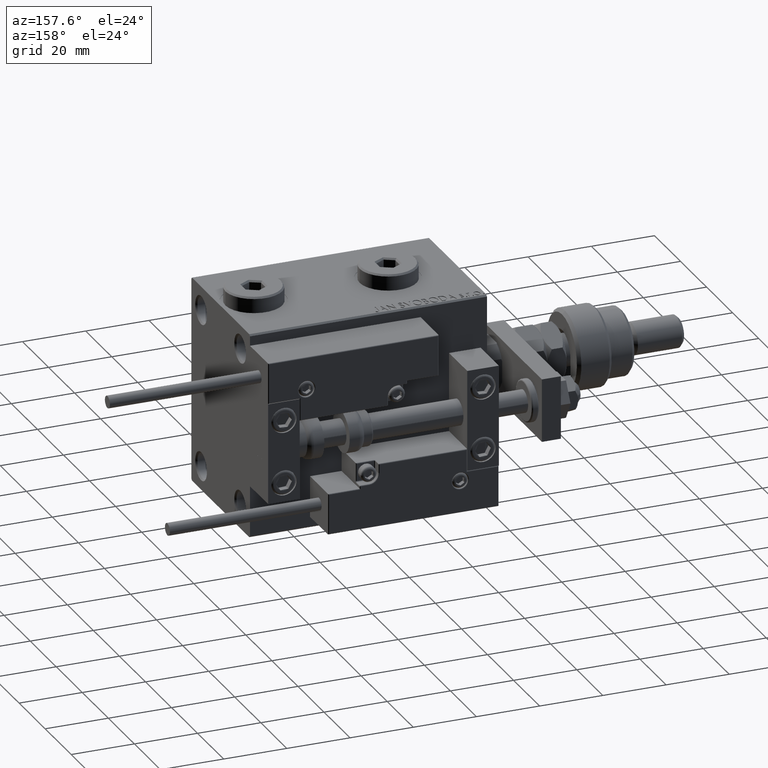
[diagram: clean part render]
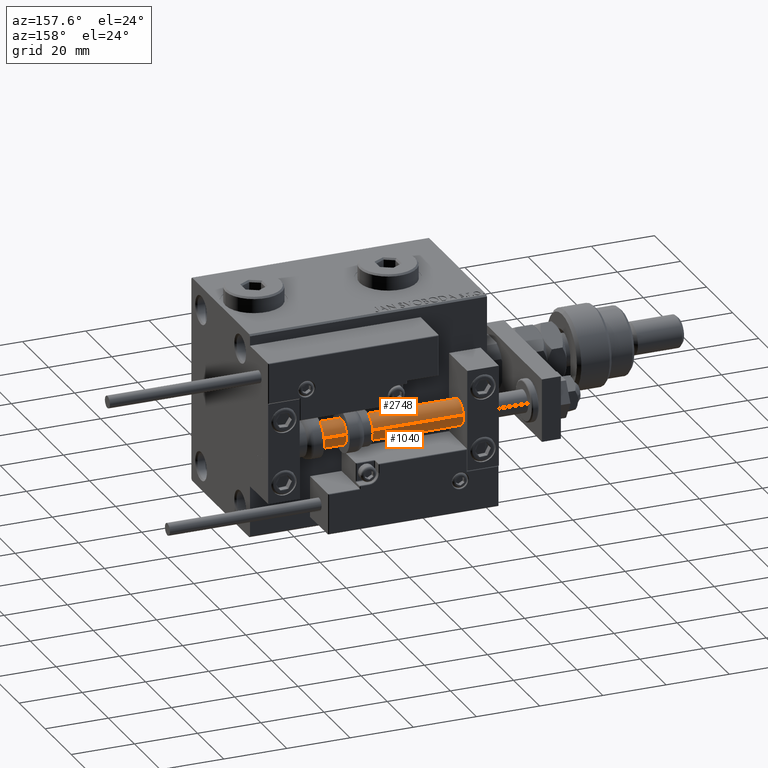
[diagram: same view with one multi-face feature highlighted, each face labeled with its STEP entity id]
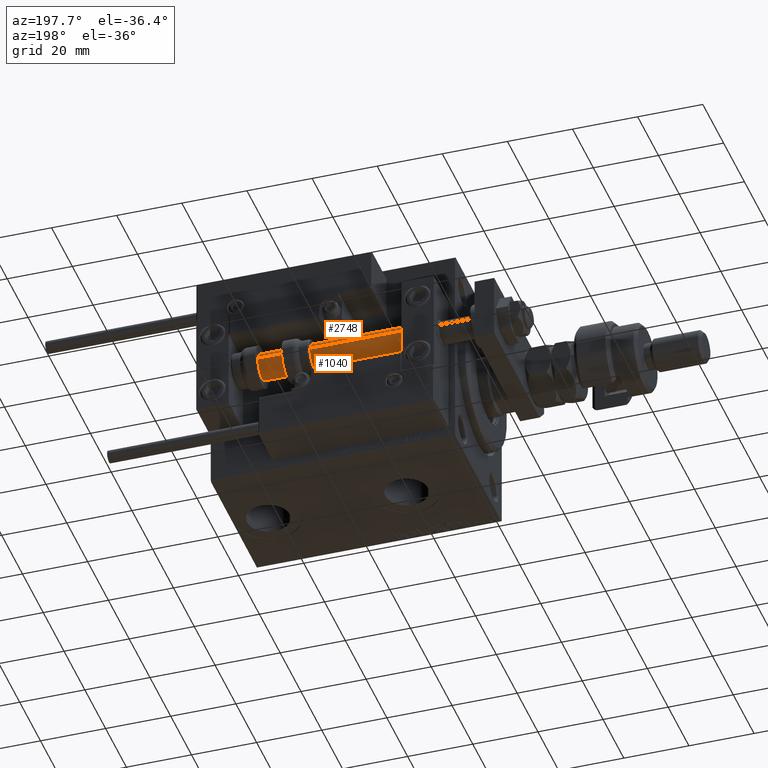
[diagram: same view with one multi-face feature highlighted, each face labeled with its STEP entity id]
A machine part, auxiliary view. The highlighted faces form ONE feature: a constant-radius fillet chain: 2 tangent blend faces with common blend radius 4 mm. The faces share edges in the B-rep.
A second angle (auxiliary view) of the same feature is appended — it is thin or edge-on in the first view.
Their STEP definitions:
[1] entity #2748 (Cylinder):
#16 = DIRECTION ( 'NONE',  ( 0.000000000000000000, 0.000000000000000000, 1.000000000000000000 ) ) ;
#62 = VERTEX_POINT ( 'NONE', #39488 ) ;
#636 = CARTESIAN_POINT ( 'NONE',  ( 4.000000000000000000, 4.898587196589412829E-16, 2.000000000000029310 ) ) ;
#1848 = DIRECTION ( 'NONE',  ( -1.000000000000000000, 0.000000000000000000, 0.000000000000000000 ) ) ;
#2748 = ADVANCED_FACE ( 'NONE', ( #49699 ), #6860, .T. ) ;
#2932 = CARTESIAN_POINT ( 'NONE',  ( 0.000000000000000000, 0.000000000000000000, 75.00000000000000000 ) ) ;
#6157 = CARTESIAN_POINT ( 'NONE',  ( 0.000000000000000000, 0.000000000000000000, 2.000000000000029310 ) ) ;
#6860 = CYLINDRICAL_SURFACE ( 'NONE', #15973, 4.000000000000000000 ) ;
#7073 = ORIENTED_EDGE ( 'NONE', *, *, #36424, .T. ) ;
#7565 = ORIENTED_EDGE ( 'NONE', *, *, #31141, .T. ) ;
#10468 = CARTESIAN_POINT ( 'NONE',  ( 4.000000000000000000, 4.898587196589412829E-16, 75.00000000000000000 ) ) ;
#11058 = DIRECTION ( 'NONE',  ( -0.000000000000000000, -0.000000000000000000, -1.000000000000000000 ) ) ;
#11345 = AXIS2_PLACEMENT_3D ( 'NONE', #6157, #18756, #14547 ) ;
#11925 = CARTESIAN_POINT ( 'NONE',  ( 4.000000000000000000, 4.898587196589412829E-16, 75.00000000000000000 ) ) ;
#12217 = LINE ( 'NONE', #17984, #23168 ) ;
#14547 = DIRECTION ( 'NONE',  ( 1.000000000000000000, 0.000000000000000000, 0.000000000000000000 ) ) ;
#15973 = AXIS2_PLACEMENT_3D ( 'NONE', #2932, #11058, #1848 ) ;
#16345 = EDGE_CURVE ( 'NONE', #17874, #21643, #39599, .T. ) ;
#17874 = VERTEX_POINT ( 'NONE', #11925 ) ;
#17984 = CARTESIAN_POINT ( 'NONE',  ( -4.000000000000000000, 0.000000000000000000, 75.00000000000000000 ) ) ;
#18756 = DIRECTION ( 'NONE',  ( -0.000000000000000000, -0.000000000000000000, 1.000000000000000000 ) ) ;
#21643 = VERTEX_POINT ( 'NONE', #47618 ) ;
#21909 = ORIENTED_EDGE ( 'NONE', *, *, #16345, .F. ) ;
#22130 = ORIENTED_EDGE ( 'NONE', *, *, #39582, .F. ) ;
#23168 = VECTOR ( 'NONE', #30615, 1000.000000000000000 ) ;
#24446 = LINE ( 'NONE', #10468, #24986 ) ;
#24986 = VECTOR ( 'NONE', #37037, 1000.000000000000000 ) ;
#25822 = EDGE_LOOP ( 'NONE', ( #21909, #7073, #7565, #22130 ) ) ;
#30615 = DIRECTION ( 'NONE',  ( -0.000000000000000000, -0.000000000000000000, -1.000000000000000000 ) ) ;
#31141 = EDGE_CURVE ( 'NONE', #38967, #62, #35489, .T. ) ;
#31555 = AXIS2_PLACEMENT_3D ( 'NONE', #42562, #16, #34427 ) ;
#34427 = DIRECTION ( 'NONE',  ( 1.000000000000000000, 0.000000000000000000, 0.000000000000000000 ) ) ;
#35489 = CIRCLE ( 'NONE', #11345, 4.000000000000000000 ) ;
#36424 = EDGE_CURVE ( 'NONE', #17874, #38967, #24446, .T. ) ;
#37037 = DIRECTION ( 'NONE',  ( -0.000000000000000000, -0.000000000000000000, -1.000000000000000000 ) ) ;
#38967 = VERTEX_POINT ( 'NONE', #636 ) ;
#39488 = CARTESIAN_POINT ( 'NONE',  ( -4.000000000000000000, 0.000000000000000000, 2.000000000000029310 ) ) ;
#39582 = EDGE_CURVE ( 'NONE', #21643, #62, #12217, .T. ) ;
#39599 = CIRCLE ( 'NONE', #31555, 4.000000000000000000 ) ;
#42562 = CARTESIAN_POINT ( 'NONE',  ( 0.000000000000000000, 0.000000000000000000, 75.00000000000000000 ) ) ;
#47618 = CARTESIAN_POINT ( 'NONE',  ( -4.000000000000000000, 0.000000000000000000, 75.00000000000000000 ) ) ;
#49699 = FACE_OUTER_BOUND ( 'NONE', #25822, .T. ) ;
[2] entity #1040 (Cylinder):
#62 = VERTEX_POINT ( 'NONE', #39488 ) ;
#636 = CARTESIAN_POINT ( 'NONE',  ( 4.000000000000000000, 4.898587196589412829E-16, 2.000000000000029310 ) ) ;
#1040 = ADVANCED_FACE ( 'NONE', ( #54050 ), #11476, .T. ) ;
#3077 = DIRECTION ( 'NONE',  ( -1.000000000000000000, 0.000000000000000000, 0.000000000000000000 ) ) ;
#3288 = EDGE_CURVE ( 'NONE', #21643, #17874, #5194, .T. ) ;
#5194 = CIRCLE ( 'NONE', #38299, 4.000000000000000000 ) ;
#6674 = AXIS2_PLACEMENT_3D ( 'NONE', #39008, #17174, #30086 ) ;
#9592 = ORIENTED_EDGE ( 'NONE', *, *, #36424, .F. ) ;
#10037 = ORIENTED_EDGE ( 'NONE', *, *, #39582, .T. ) ;
#10468 = CARTESIAN_POINT ( 'NONE',  ( 4.000000000000000000, 4.898587196589412829E-16, 75.00000000000000000 ) ) ;
#11476 = CYLINDRICAL_SURFACE ( 'NONE', #51673, 4.000000000000000000 ) ;
#11925 = CARTESIAN_POINT ( 'NONE',  ( 4.000000000000000000, 4.898587196589412829E-16, 75.00000000000000000 ) ) ;
#12217 = LINE ( 'NONE', #17984, #23168 ) ;
#15663 = DIRECTION ( 'NONE',  ( -0.000000000000000000, -0.000000000000000000, -1.000000000000000000 ) ) ;
#17174 = DIRECTION ( 'NONE',  ( -0.000000000000000000, -0.000000000000000000, 1.000000000000000000 ) ) ;
#17874 = VERTEX_POINT ( 'NONE', #11925 ) ;
#17984 = CARTESIAN_POINT ( 'NONE',  ( -4.000000000000000000, 0.000000000000000000, 75.00000000000000000 ) ) ;
#19248 = DIRECTION ( 'NONE',  ( 1.000000000000000000, 0.000000000000000000, 0.000000000000000000 ) ) ;
#21643 = VERTEX_POINT ( 'NONE', #47618 ) ;
#22607 = EDGE_CURVE ( 'NONE', #62, #38967, #35281, .T. ) ;
#23168 = VECTOR ( 'NONE', #30615, 1000.000000000000000 ) ;
#24446 = LINE ( 'NONE', #10468, #24986 ) ;
#24986 = VECTOR ( 'NONE', #37037, 1000.000000000000000 ) ;
#27361 = ORIENTED_EDGE ( 'NONE', *, *, #3288, .F. ) ;
#30086 = DIRECTION ( 'NONE',  ( 1.000000000000000000, 0.000000000000000000, 0.000000000000000000 ) ) ;
#30615 = DIRECTION ( 'NONE',  ( -0.000000000000000000, -0.000000000000000000, -1.000000000000000000 ) ) ;
#33869 = CARTESIAN_POINT ( 'NONE',  ( 0.000000000000000000, 0.000000000000000000, 75.00000000000000000 ) ) ;
#35281 = CIRCLE ( 'NONE', #6674, 4.000000000000000000 ) ;
#36424 = EDGE_CURVE ( 'NONE', #17874, #38967, #24446, .T. ) ;
#37037 = DIRECTION ( 'NONE',  ( -0.000000000000000000, -0.000000000000000000, -1.000000000000000000 ) ) ;
#37165 = CARTESIAN_POINT ( 'NONE',  ( 0.000000000000000000, 0.000000000000000000, 75.00000000000000000 ) ) ;
#37811 = EDGE_LOOP ( 'NONE', ( #9592, #27361, #10037, #55106 ) ) ;
#38299 = AXIS2_PLACEMENT_3D ( 'NONE', #37165, #45301, #19248 ) ;
#38967 = VERTEX_POINT ( 'NONE', #636 ) ;
#39008 = CARTESIAN_POINT ( 'NONE',  ( 0.000000000000000000, 0.000000000000000000, 2.000000000000029310 ) ) ;
#39488 = CARTESIAN_POINT ( 'NONE',  ( -4.000000000000000000, 0.000000000000000000, 2.000000000000029310 ) ) ;
#39582 = EDGE_CURVE ( 'NONE', #21643, #62, #12217, .T. ) ;
#45301 = DIRECTION ( 'NONE',  ( 0.000000000000000000, 0.000000000000000000, 1.000000000000000000 ) ) ;
#47618 = CARTESIAN_POINT ( 'NONE',  ( -4.000000000000000000, 0.000000000000000000, 75.00000000000000000 ) ) ;
#51673 = AXIS2_PLACEMENT_3D ( 'NONE', #33869, #15663, #3077 ) ;
#54050 = FACE_OUTER_BOUND ( 'NONE', #37811, .T. ) ;
#55106 = ORIENTED_EDGE ( 'NONE', *, *, #22607, .T. ) ;